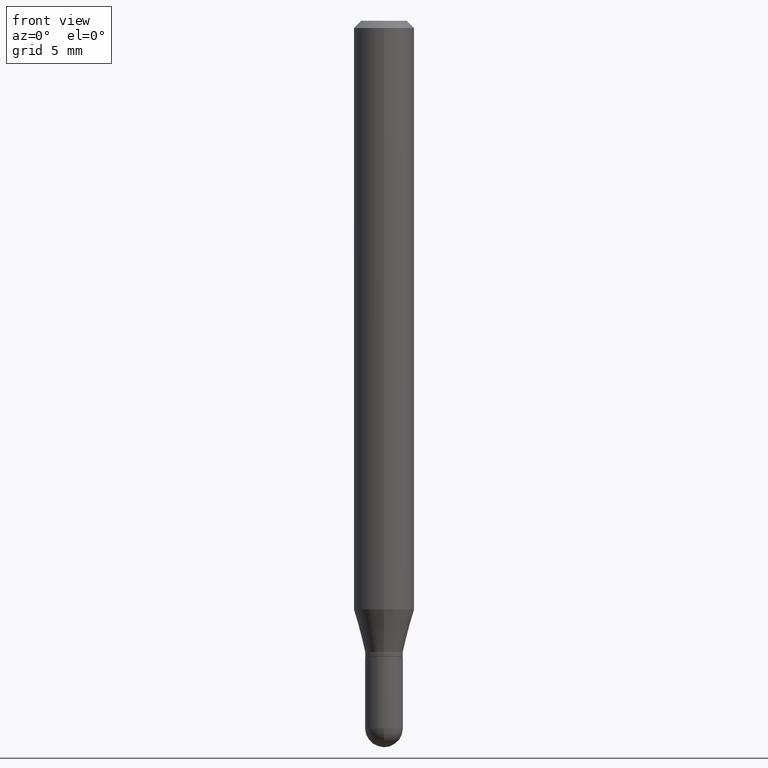
[diagram: clean part render]
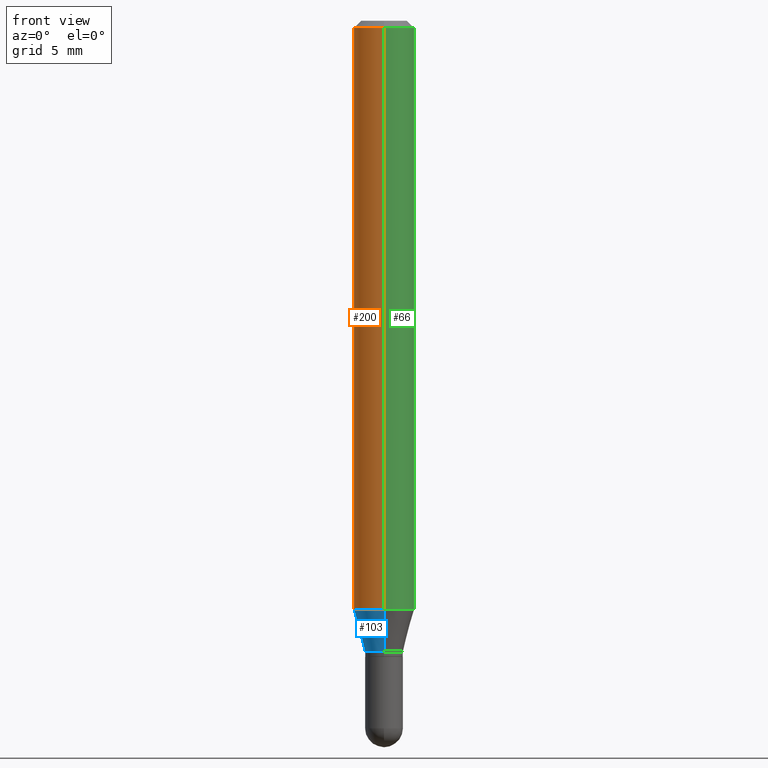
[diagram: same view with three faces highlighted in distinct colors, each labeled with its STEP entity id]
A machine part, front view with three faces highlighted in distinct colors.
Their STEP definitions:

[orange] entity #200 — the highlighted cylindrical surface (edge-blend (fillet) strip) has radius 1.5875 mm, axis along (-0, 0, 1).
#16 = VECTOR ( 'NONE', #320, 39.37007874015748143 ) ;
#33 = DIRECTION ( 'NONE',  ( -6.982962677686265133E-15, -1.000000000000000000, 3.491128430402829729E-15 ) ) ;
#59 = ORIENTED_EDGE ( 'NONE', *, *, #390, .T. ) ;
#65 = VERTEX_POINT ( 'NONE', #391 ) ;
#71 = DIRECTION ( 'NONE',  ( -2.445715240831873182E-29, 3.491128430402830124E-15, 1.000000000000000000 ) ) ;
#72 = VECTOR ( 'NONE', #205, 39.37007874015748143 ) ;
#89 = CARTESIAN_POINT ( 'NONE',  ( 3.668572861247897004E-31, -5.236692645604369505E-17, -0.01500000000000035853 ) ) ;
#92 = VERTEX_POINT ( 'NONE', #507 ) ;
#131 = CARTESIAN_POINT ( 'NONE',  ( 4.440892098500626162E-16, 0.06250000000000001388, -2.181955269001769074E-16 ) ) ;
#144 = CARTESIAN_POINT ( 'NONE',  ( -4.364351673553916694E-16, -0.06250000000000001388, 2.181955269001769074E-16 ) ) ;
#159 = CARTESIAN_POINT ( 'NONE',  ( -4.364351673553621364E-16, -0.06250000000000427436, -1.215483408562511025 ) ) ;
#165 = LINE ( 'NONE', #131, #16 ) ;
#174 = ORIENTED_EDGE ( 'NONE', *, *, #443, .T. ) ;
#200 = ADVANCED_FACE ( 'NONE', ( #511 ), #475, .T. ) ;
#205 = DIRECTION ( 'NONE',  ( -2.445715240831873463E-29, 3.491128430402830124E-15, 1.000000000000000000 ) ) ;
#208 = AXIS2_PLACEMENT_3D ( 'NONE', #423, #71, #33 ) ;
#210 = CIRCLE ( 'NONE', #324, 0.06250000000000000000 ) ;
#213 = CARTESIAN_POINT ( 'NONE',  ( 2.972726297299607962E-29, -4.243408684315521466E-15, -1.215483408562511247 ) ) ;
#217 = DIRECTION ( 'NONE',  ( -6.982962677686265922E-15, -1.000000000000000000, 4.370956789862821150E-15 ) ) ;
#237 = DIRECTION ( 'NONE',  ( -2.445715240831873182E-29, 3.491128430402830124E-15, 1.000000000000000000 ) ) ;
#247 = DIRECTION ( 'NONE',  ( -6.982962677686265922E-15, -1.000000000000000000, 3.483106191921934765E-15 ) ) ;
#249 = ORIENTED_EDGE ( 'NONE', *, *, #268, .F. ) ;
#268 = EDGE_CURVE ( 'NONE', #448, #65, #165, .T. ) ;
#320 = DIRECTION ( 'NONE',  ( -2.445715240831873463E-29, 3.491128430402830124E-15, 1.000000000000000000 ) ) ;
#324 = AXIS2_PLACEMENT_3D ( 'NONE', #213, #449, #217 ) ;
#327 = VERTEX_POINT ( 'NONE', #159 ) ;
#328 = EDGE_CURVE ( 'NONE', #65, #92, #462, .T. ) ;
#359 = ORIENTED_EDGE ( 'NONE', *, *, #328, .F. ) ;
#376 = EDGE_LOOP ( 'NONE', ( #249, #174, #59, #359 ) ) ;
#390 = EDGE_CURVE ( 'NONE', #327, #92, #499, .T. ) ;
#391 = CARTESIAN_POINT ( 'NONE',  ( 4.440892098500924943E-16, 0.06249999999999995837, -0.01500000000000057711 ) ) ;
#417 = CARTESIAN_POINT ( 'NONE',  ( 4.440892098500919026E-16, 0.06249999999999571176, -1.215483408562511469 ) ) ;
#423 = CARTESIAN_POINT ( 'NONE',  ( 0.000000000000000000, 0.000000000000000000, 0.000000000000000000 ) ) ;
#443 = EDGE_CURVE ( 'NONE', #448, #327, #210, .T. ) ;
#445 = AXIS2_PLACEMENT_3D ( 'NONE', #89, #237, #247 ) ;
#448 = VERTEX_POINT ( 'NONE', #417 ) ;
#449 = DIRECTION ( 'NONE',  ( -2.445715240831873182E-29, 3.491128430402830124E-15, 1.000000000000000000 ) ) ;
#462 = CIRCLE ( 'NONE', #445, 0.06250000000000001388 ) ;
#475 = CYLINDRICAL_SURFACE ( 'NONE', #208, 0.06250000000000001388 ) ;
#499 = LINE ( 'NONE', #144, #72 ) ;
#507 = CARTESIAN_POINT ( 'NONE',  ( -4.364351673553913736E-16, -0.06250000000000006939, -0.01500000000000014169 ) ) ;
#511 = FACE_OUTER_BOUND ( 'NONE', #376, .T. ) ;

[blue] entity #103 — the highlighted conical surface has half-angle 15 deg.
#48 = CARTESIAN_POINT ( 'NONE',  ( 3.186766958803931544E-29, -4.548940344814889109E-15, -1.303000000000000380 ) ) ;
#50 = CARTESIAN_POINT ( 'NONE',  ( -2.726846925636181991E-16, -0.03905000000000474758, -1.303000000000000380 ) ) ;
#54 = VERTEX_POINT ( 'NONE', #221 ) ;
#57 = DIRECTION ( 'NONE',  ( -1.807323732225331323E-15, -0.2588190451025183525, 0.9659258262890689783 ) ) ;
#103 = ADVANCED_FACE ( 'NONE', ( #464 ), #419, .T. ) ;
#113 = EDGE_CURVE ( 'NONE', #300, #448, #154, .T. ) ;
#118 = DIRECTION ( 'NONE',  ( -6.982962677686265922E-15, -1.000000000000000000, 0.000000000000000000 ) ) ;
#147 = AXIS2_PLACEMENT_3D ( 'NONE', #231, #463, #118 ) ;
#154 = LINE ( 'NONE', #346, #305 ) ;
#159 = CARTESIAN_POINT ( 'NONE',  ( -4.364351673553621364E-16, -0.06250000000000427436, -1.215483408562511025 ) ) ;
#161 = CIRCLE ( 'NONE', #279, 0.03905000000000019567 ) ;
#179 = LINE ( 'NONE', #50, #281 ) ;
#183 = DIRECTION ( 'NONE',  ( 1.839019923739601499E-15, 0.2588190451025251249, 0.9659258262890670910 ) ) ;
#203 = DIRECTION ( 'NONE',  ( -2.445715240831873182E-29, 3.491128430402830124E-15, 1.000000000000000000 ) ) ;
#210 = CIRCLE ( 'NONE', #324, 0.06250000000000000000 ) ;
#213 = CARTESIAN_POINT ( 'NONE',  ( 2.972726297299607962E-29, -4.243408684315521466E-15, -1.215483408562511247 ) ) ;
#217 = DIRECTION ( 'NONE',  ( -6.982962677686265922E-15, -1.000000000000000000, 4.370956789862821150E-15 ) ) ;
#221 = CARTESIAN_POINT ( 'NONE',  ( -2.726846925636181991E-16, -0.03905000000000474758, -1.303000000000000380 ) ) ;
#231 = CARTESIAN_POINT ( 'NONE',  ( 3.186766958803931544E-29, -4.548940344814889109E-15, -1.303000000000000380 ) ) ;
#279 = AXIS2_PLACEMENT_3D ( 'NONE', #48, #203, #373 ) ;
#281 = VECTOR ( 'NONE', #57, 39.37007874015748854 ) ;
#283 = ORIENTED_EDGE ( 'NONE', *, *, #443, .F. ) ;
#300 = VERTEX_POINT ( 'NONE', #476 ) ;
#304 = EDGE_LOOP ( 'NONE', ( #450, #481, #460, #283 ) ) ;
#305 = VECTOR ( 'NONE', #183, 39.37007874015748854 ) ;
#324 = AXIS2_PLACEMENT_3D ( 'NONE', #213, #449, #217 ) ;
#327 = VERTEX_POINT ( 'NONE', #159 ) ;
#339 = EDGE_CURVE ( 'NONE', #300, #54, #161, .T. ) ;
#346 = CARTESIAN_POINT ( 'NONE',  ( 2.774669383143523138E-16, 0.03904999999999564375, -1.303000000000000380 ) ) ;
#373 = DIRECTION ( 'NONE',  ( -6.982962677686265922E-15, -1.000000000000000000, 0.000000000000000000 ) ) ;
#417 = CARTESIAN_POINT ( 'NONE',  ( 4.440892098500919026E-16, 0.06249999999999571176, -1.215483408562511469 ) ) ;
#419 = CONICAL_SURFACE ( 'NONE', #147, 0.03905000000000019567, 0.2617993877991504625 ) ;
#443 = EDGE_CURVE ( 'NONE', #448, #327, #210, .T. ) ;
#448 = VERTEX_POINT ( 'NONE', #417 ) ;
#449 = DIRECTION ( 'NONE',  ( -2.445715240831873182E-29, 3.491128430402830124E-15, 1.000000000000000000 ) ) ;
#450 = ORIENTED_EDGE ( 'NONE', *, *, #113, .F. ) ;
#460 = ORIENTED_EDGE ( 'NONE', *, *, #472, .T. ) ;
#463 = DIRECTION ( 'NONE',  ( -2.445715240831873182E-29, 3.491128430402830124E-15, 1.000000000000000000 ) ) ;
#464 = FACE_OUTER_BOUND ( 'NONE', #304, .T. ) ;
#472 = EDGE_CURVE ( 'NONE', #54, #327, #179, .T. ) ;
#476 = CARTESIAN_POINT ( 'NONE',  ( 3.607780740822223794E-16, 0.03904999999999564375, -1.303000000000000380 ) ) ;
#481 = ORIENTED_EDGE ( 'NONE', *, *, #339, .T. ) ;

[green] entity #66 — the highlighted cylindrical surface (edge-blend (fillet) strip) has radius 1.5875 mm, axis along (-0, 0, 1).
#16 = VECTOR ( 'NONE', #320, 39.37007874015748143 ) ;
#24 = CARTESIAN_POINT ( 'NONE',  ( 2.972726297299607962E-29, -4.243408684315521466E-15, -1.215483408562511247 ) ) ;
#30 = AXIS2_PLACEMENT_3D ( 'NONE', #24, #133, #250 ) ;
#35 = CARTESIAN_POINT ( 'NONE',  ( 0.000000000000000000, 0.000000000000000000, 0.000000000000000000 ) ) ;
#65 = VERTEX_POINT ( 'NONE', #391 ) ;
#66 = ADVANCED_FACE ( 'NONE', ( #315 ), #399, .T. ) ;
#72 = VECTOR ( 'NONE', #205, 39.37007874015748143 ) ;
#92 = VERTEX_POINT ( 'NONE', #507 ) ;
#128 = ORIENTED_EDGE ( 'NONE', *, *, #426, .F. ) ;
#131 = CARTESIAN_POINT ( 'NONE',  ( 4.440892098500626162E-16, 0.06250000000000001388, -2.181955269001769074E-16 ) ) ;
#133 = DIRECTION ( 'NONE',  ( -2.445715240831873182E-29, 3.491128430402830124E-15, 1.000000000000000000 ) ) ;
#144 = CARTESIAN_POINT ( 'NONE',  ( -4.364351673553916694E-16, -0.06250000000000001388, 2.181955269001769074E-16 ) ) ;
#159 = CARTESIAN_POINT ( 'NONE',  ( -4.364351673553621364E-16, -0.06250000000000427436, -1.215483408562511025 ) ) ;
#165 = LINE ( 'NONE', #131, #16 ) ;
#173 = DIRECTION ( 'NONE',  ( -6.982962677686265922E-15, -1.000000000000000000, 3.483106191921934765E-15 ) ) ;
#205 = DIRECTION ( 'NONE',  ( -2.445715240831873463E-29, 3.491128430402830124E-15, 1.000000000000000000 ) ) ;
#250 = DIRECTION ( 'NONE',  ( -6.982962677686265922E-15, -1.000000000000000000, 4.370956789862821150E-15 ) ) ;
#252 = CIRCLE ( 'NONE', #30, 0.06250000000000000000 ) ;
#257 = ORIENTED_EDGE ( 'NONE', *, *, #379, .T. ) ;
#268 = EDGE_CURVE ( 'NONE', #448, #65, #165, .T. ) ;
#302 = EDGE_LOOP ( 'NONE', ( #257, #383, #128, #483 ) ) ;
#310 = DIRECTION ( 'NONE',  ( -6.982962677686265133E-15, -1.000000000000000000, 3.491128430402829729E-15 ) ) ;
#315 = FACE_OUTER_BOUND ( 'NONE', #302, .T. ) ;
#320 = DIRECTION ( 'NONE',  ( -2.445715240831873463E-29, 3.491128430402830124E-15, 1.000000000000000000 ) ) ;
#327 = VERTEX_POINT ( 'NONE', #159 ) ;
#351 = AXIS2_PLACEMENT_3D ( 'NONE', #495, #491, #173 ) ;
#361 = AXIS2_PLACEMENT_3D ( 'NONE', #35, #471, #310 ) ;
#379 = EDGE_CURVE ( 'NONE', #327, #448, #252, .T. ) ;
#383 = ORIENTED_EDGE ( 'NONE', *, *, #268, .T. ) ;
#390 = EDGE_CURVE ( 'NONE', #327, #92, #499, .T. ) ;
#391 = CARTESIAN_POINT ( 'NONE',  ( 4.440892098500924943E-16, 0.06249999999999995837, -0.01500000000000057711 ) ) ;
#399 = CYLINDRICAL_SURFACE ( 'NONE', #361, 0.06250000000000001388 ) ;
#417 = CARTESIAN_POINT ( 'NONE',  ( 4.440892098500919026E-16, 0.06249999999999571176, -1.215483408562511469 ) ) ;
#426 = EDGE_CURVE ( 'NONE', #92, #65, #429, .T. ) ;
#429 = CIRCLE ( 'NONE', #351, 0.06250000000000001388 ) ;
#448 = VERTEX_POINT ( 'NONE', #417 ) ;
#471 = DIRECTION ( 'NONE',  ( -2.445715240831873182E-29, 3.491128430402830124E-15, 1.000000000000000000 ) ) ;
#483 = ORIENTED_EDGE ( 'NONE', *, *, #390, .F. ) ;
#491 = DIRECTION ( 'NONE',  ( -2.445715240831873182E-29, 3.491128430402830124E-15, 1.000000000000000000 ) ) ;
#495 = CARTESIAN_POINT ( 'NONE',  ( 3.668572861247897004E-31, -5.236692645604369505E-17, -0.01500000000000035853 ) ) ;
#499 = LINE ( 'NONE', #144, #72 ) ;
#507 = CARTESIAN_POINT ( 'NONE',  ( -4.364351673553913736E-16, -0.06250000000000006939, -0.01500000000000014169 ) ) ;